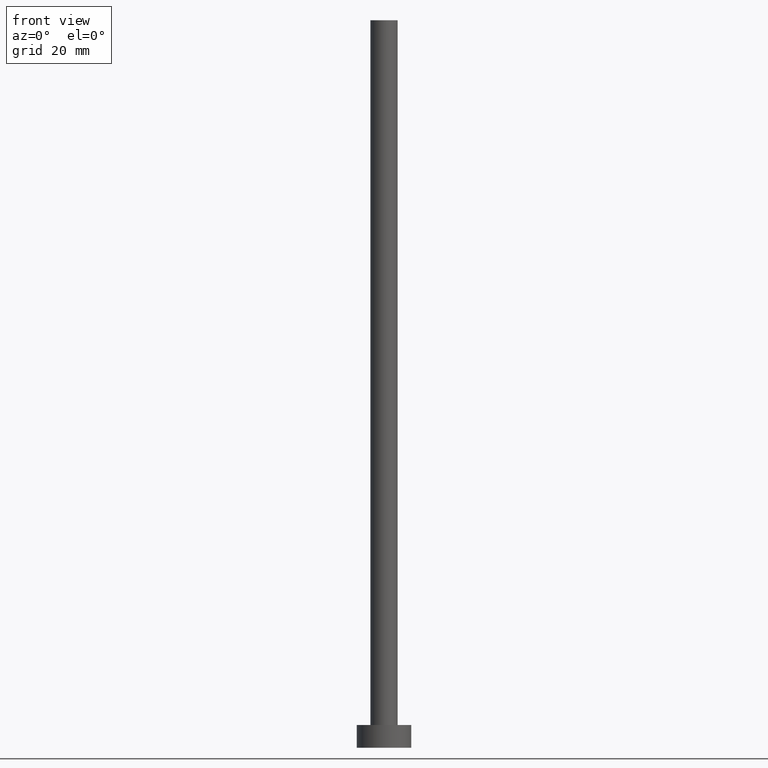
[diagram: clean part render]
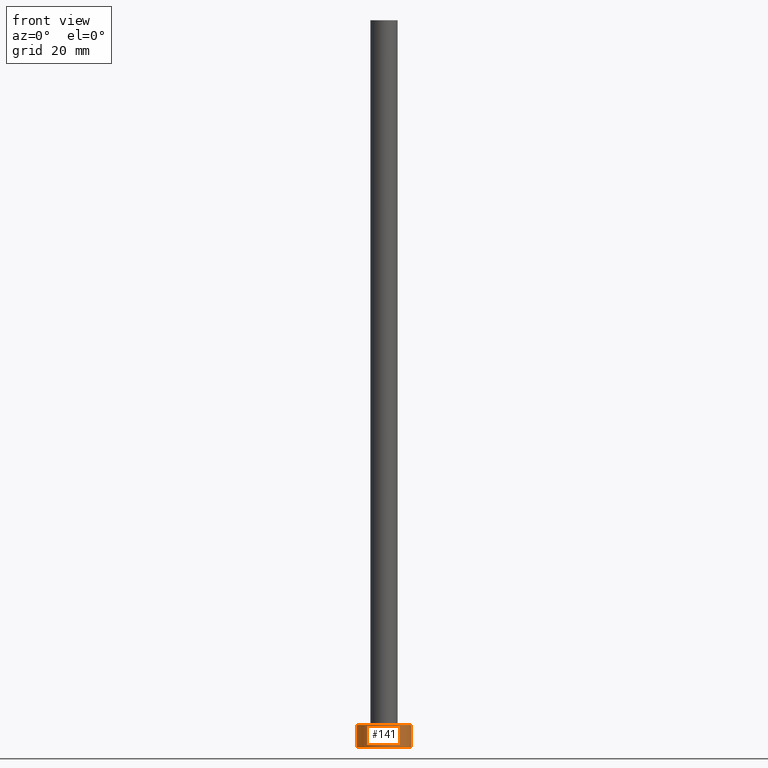
[diagram: same view with one face highlighted and labeled with its STEP entity id]
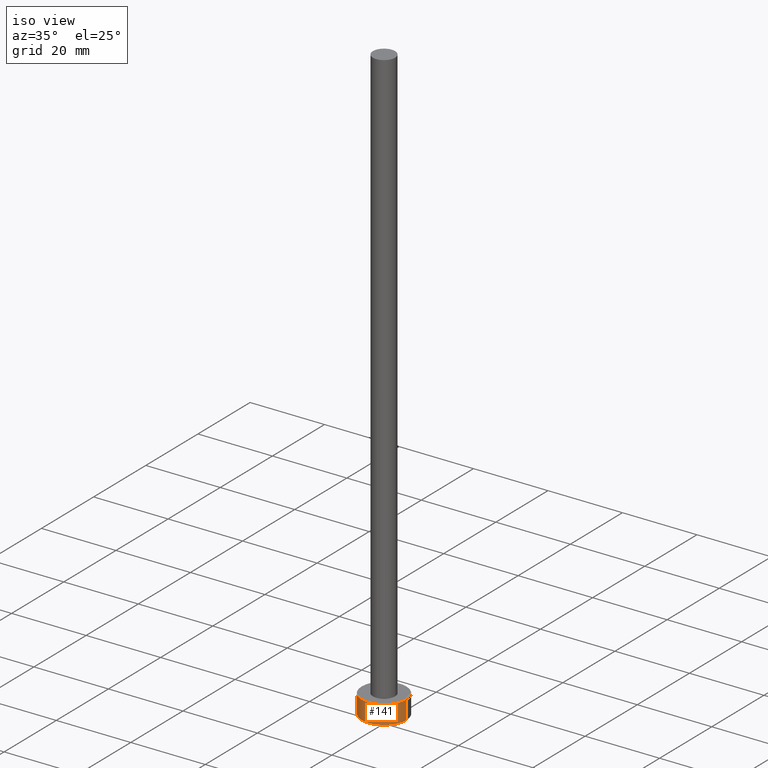
[diagram: same view with one face highlighted and labeled with its STEP entity id]
A machine part, front view. The second image highlights one B-rep face of the part: STEP entity #141.
A second angle (iso view) of the same face is appended — the face is thin or edge-on in the first view.
In plain terms, the highlighted cylindrical surface (edge-blend (fillet) strip) has radius 6 mm, axis along (-0, -0, -1).
Its self-contained STEP definition (entity closure, byte-faithful):
#3 = CIRCLE ( 'NONE', #213, 6.000000000000000888 ) ;
#6 = ORIENTED_EDGE ( 'NONE', *, *, #154, .F. ) ;
#10 = CARTESIAN_POINT ( 'NONE',  ( 0.000000000000000000, 0.000000000000000000, 5.000000000000000000 ) ) ;
#12 = DIRECTION ( 'NONE',  ( 1.000000000000000000, 0.000000000000000000, 0.000000000000000000 ) ) ;
#13 = DIRECTION ( 'NONE',  ( 1.000000000000000000, 0.000000000000000000, 0.000000000000000000 ) ) ;
#14 = LINE ( 'NONE', #30, #142 ) ;
#29 = CARTESIAN_POINT ( 'NONE',  ( -6.000000000000000888, 0.000000000000000000, 5.000000000000000000 ) ) ;
#30 = CARTESIAN_POINT ( 'NONE',  ( 6.000000000000000888, 7.347880794884120722E-16, 5.000000000000000000 ) ) ;
#38 = EDGE_LOOP ( 'NONE', ( #6, #40, #240, #124 ) ) ;
#40 = ORIENTED_EDGE ( 'NONE', *, *, #53, .F. ) ;
#45 = DIRECTION ( 'NONE',  ( 0.000000000000000000, 0.000000000000000000, 1.000000000000000000 ) ) ;
#51 = CIRCLE ( 'NONE', #128, 6.000000000000000888 ) ;
#53 = EDGE_CURVE ( 'NONE', #82, #103, #51, .T. ) ;
#56 = AXIS2_PLACEMENT_3D ( 'NONE', #195, #208, #137 ) ;
#64 = VERTEX_POINT ( 'NONE', #189 ) ;
#65 = DIRECTION ( 'NONE',  ( 0.000000000000000000, 0.000000000000000000, 1.000000000000000000 ) ) ;
#68 = CARTESIAN_POINT ( 'NONE',  ( 6.000000000000000888, 7.347880794884120722E-16, 5.000000000000000000 ) ) ;
#70 = DIRECTION ( 'NONE',  ( -0.000000000000000000, -0.000000000000000000, -1.000000000000000000 ) ) ;
#76 = EDGE_CURVE ( 'NONE', #82, #148, #246, .T. ) ;
#82 = VERTEX_POINT ( 'NONE', #251 ) ;
#100 = EDGE_CURVE ( 'NONE', #148, #64, #3, .T. ) ;
#103 = VERTEX_POINT ( 'NONE', #68 ) ;
#115 = CYLINDRICAL_SURFACE ( 'NONE', #56, 6.000000000000000888 ) ;
#124 = ORIENTED_EDGE ( 'NONE', *, *, #100, .T. ) ;
#128 = AXIS2_PLACEMENT_3D ( 'NONE', #10, #65, #12 ) ;
#137 = DIRECTION ( 'NONE',  ( -1.000000000000000000, 0.000000000000000000, 0.000000000000000000 ) ) ;
#141 = ADVANCED_FACE ( 'NONE', ( #229 ), #115, .T. ) ;
#142 = VECTOR ( 'NONE', #70, 1000.000000000000000 ) ;
#146 = VECTOR ( 'NONE', #191, 1000.000000000000000 ) ;
#148 = VERTEX_POINT ( 'NONE', #174 ) ;
#154 = EDGE_CURVE ( 'NONE', #103, #64, #14, .T. ) ;
#174 = CARTESIAN_POINT ( 'NONE',  ( -6.000000000000000888, 0.000000000000000000, 0.000000000000000000 ) ) ;
#189 = CARTESIAN_POINT ( 'NONE',  ( 6.000000000000000888, 7.347880794884120722E-16, 0.000000000000000000 ) ) ;
#191 = DIRECTION ( 'NONE',  ( -0.000000000000000000, -0.000000000000000000, -1.000000000000000000 ) ) ;
#195 = CARTESIAN_POINT ( 'NONE',  ( 0.000000000000000000, 0.000000000000000000, 5.000000000000000000 ) ) ;
#208 = DIRECTION ( 'NONE',  ( -0.000000000000000000, -0.000000000000000000, -1.000000000000000000 ) ) ;
#213 = AXIS2_PLACEMENT_3D ( 'NONE', #249, #45, #13 ) ;
#229 = FACE_OUTER_BOUND ( 'NONE', #38, .T. ) ;
#240 = ORIENTED_EDGE ( 'NONE', *, *, #76, .T. ) ;
#246 = LINE ( 'NONE', #29, #146 ) ;
#249 = CARTESIAN_POINT ( 'NONE',  ( 0.000000000000000000, 0.000000000000000000, 0.000000000000000000 ) ) ;
#251 = CARTESIAN_POINT ( 'NONE',  ( -6.000000000000000888, 0.000000000000000000, 5.000000000000000000 ) ) ;